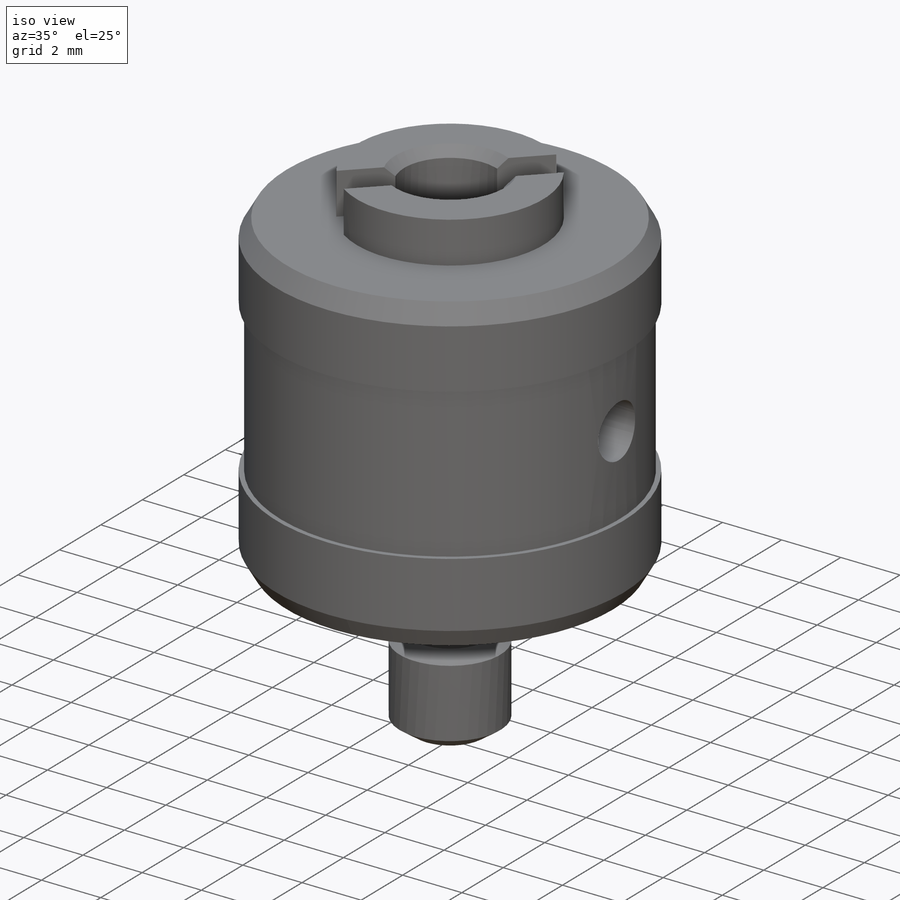
[diagram: iso view]
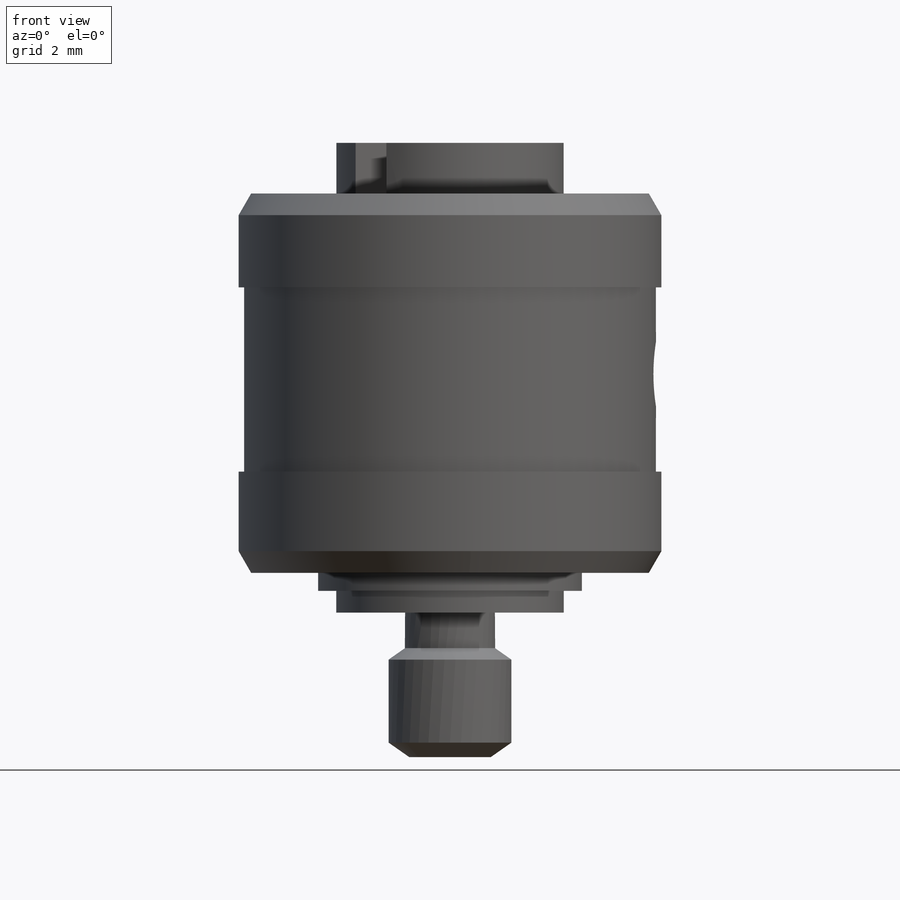
[diagram: front view]
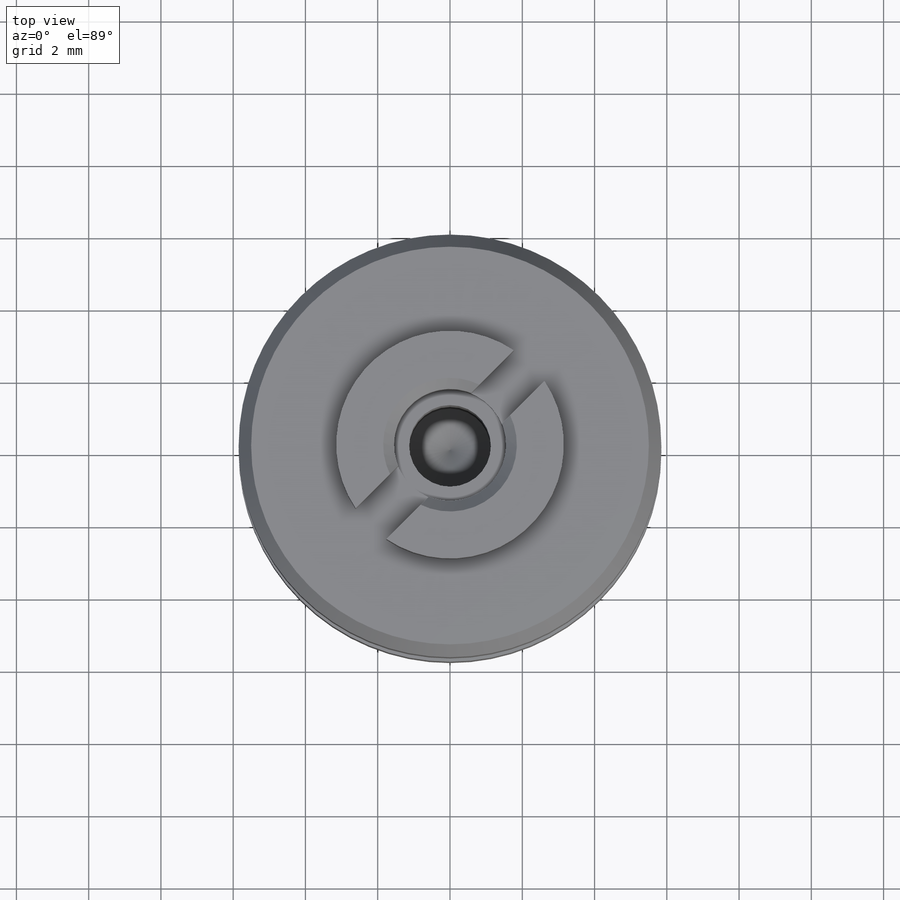
[diagram: top view]
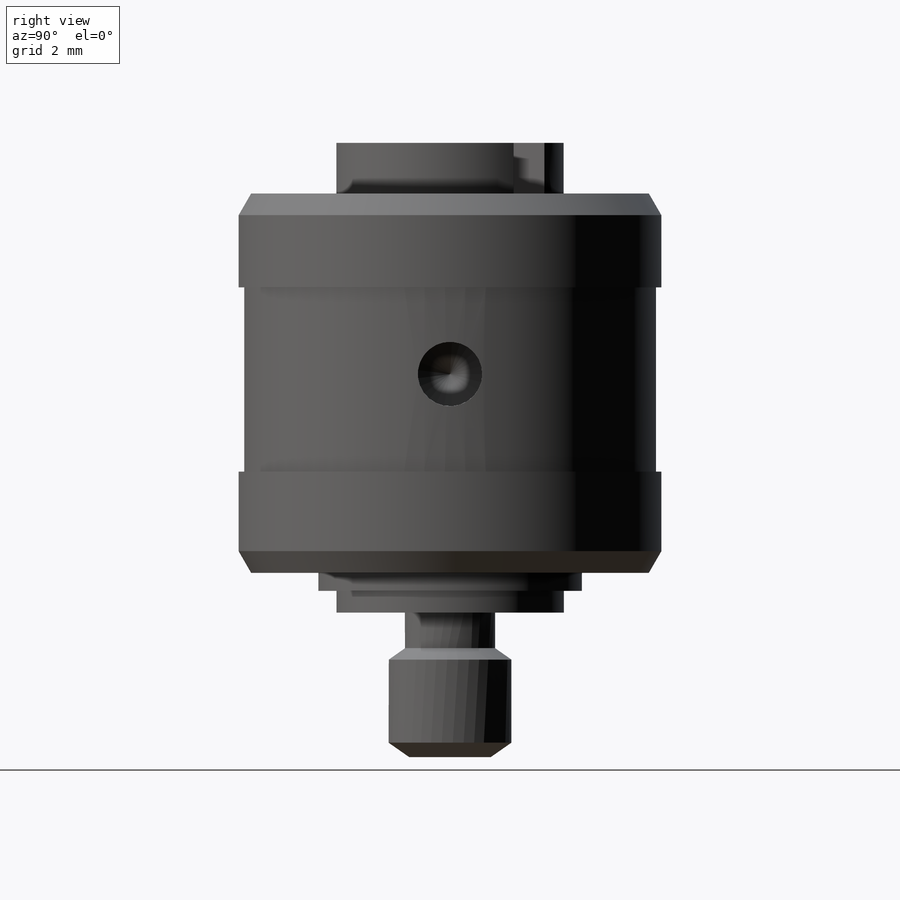
[diagram: right view]
SOLIDWORKS PART (.sldprt)
format: sldprt  version: not decoded by parser v0  size: 352,256 bytes
history: native  units: mm
features: sketch x7, hole x2, thread x2, cut_extrude x2, material x1, revolve x1, chamfer x1, plane x1 (+14 scaffold rows collapsed)
feature tree (31):
  scaffold x14  (default folders/planes/origin — collapsed)
  material  "Хромированная нержавеющая сталь"
  sketch  "Эскиз1"  dims[c1.D1=11.15mm c1.D2=13.0mm c1.D3=1.1mm c1.D4=4.0mm c1.D5=2.8mm c1.D6=6.35mm c1.D7=3.7mm c1.D8=1.6mm c2.D6=5.85mm c2.D9=5.7mm c2.D10=5.1mm c2.D11=2.8mm c2.D12=0.6mm c2.D13=45.0deg c2.D14=0.6mm c2.D15=60.0deg c2.D16=0.15mm c2.D17=45.0deg c2.D18=0.15mm c2.D19=45.0deg c3.D13=3.17mm c3.D16=~0.986797mm c3.D12=10.5mm c4.D16=1.5mm c4.D17=0.6mm c4.D18=2.08mm c5.D18=60.0deg c5.D6=11.7mm c5.D5=6.3mm c5.D9=11.4mm c5.D8=3.4mm c5.D7=7.3mm c6.D8=3.4mm c6.D19=2.5mm c6.D4=4.0mm c6.D20=0.4mm c6.D21=~0.736014mm c7.D21=55.0deg c7.D22=0.7mm c7.D23=~0.523034mm c8.D23=55.0deg c8.D13=0.6mm c8.D14=0.6mm c8.D3=13.0mm c8.D4=1.1mm c8.D16=0.5mm c8.D17=6.3mm c8.D22=4.0mm c8.D24=1.3mm]
  revolve  "Повернуть1"  Angle=360deg
  hole  "#2-56 Tapped Hole1"  [1 undecoded]
  sketch  "Трехмерный эскиз1"  dims[D1=5.0mm D2=5.5mm]
  sketch  "Эскиз2"  dims[hole-wizard template sketch: 46 standard entries collapsed; hole parameters kept: c15.Диаметр сверла=1.778mm c15.Глубина сверла=3.73mm c15.D3=~14.816244mm c15.Угол заточки сверла=118.0deg]
  thread  "Отверстие резьбы1"  Diameter=3.37mm  [1 undecoded]
  hole  "#4-40 Tapped Hole1"  [1 undecoded]
  sketch  "Эскиз4"
  sketch  "Эскиз3"  dims[hole-wizard template sketch: 46 standard entries collapsed; hole parameters kept: c15.Диаметр сверла=2.2606mm c15.Глубина сверла=7.6mm c15.D3=~14.816244mm c15.Угол заточки сверла=118.0deg]
  thread  "Отверстие резьбы2"  Diameter=5.69mm  [1 undecoded]
  sketch  "Эскиз5"  dims[D1=3.1mm]
  cut_extrude  "Вырез-Вытянуть1"  Depth=2mm
  chamfer  "Фаска1"  Distance=0.3mm Angle=45deg
  plane  "Плоскость1"
  sketch  "Эскиз6"  dims[D1=1.2mm D2=1.4mm D3=0.6mm]
  cut_extrude  "Вырез-Вытянуть2"  [1 undecoded]
decode coverage: 11 of 15 modeling features carry decoded parameters
note: ~ marks probable driven/reference dimensions
note: 5 parameter values undecoded
summary: no parameter record found for 3 features
note: suppression state not decoded; provenance and decode notes live in map.json
